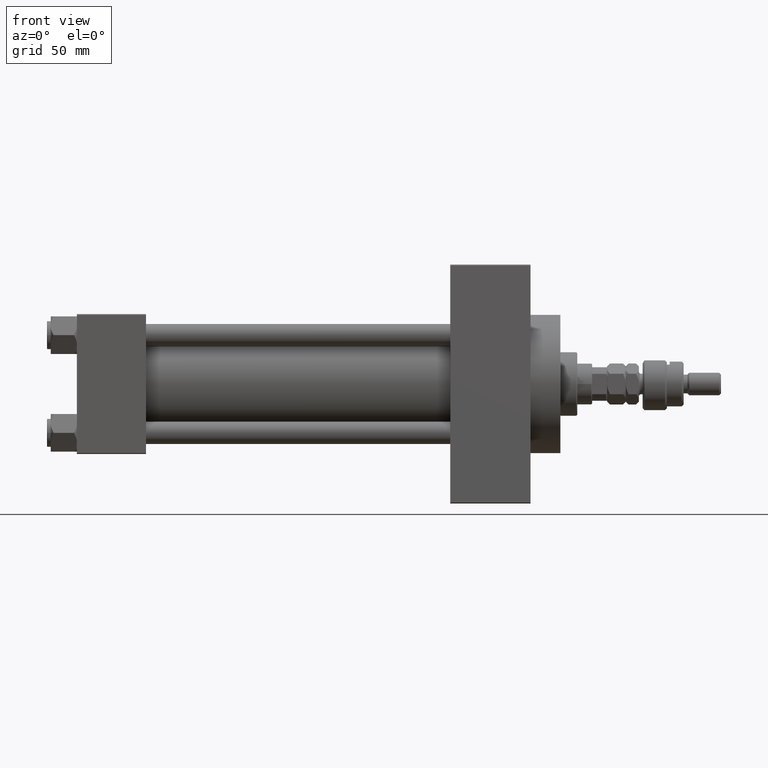
[diagram: clean part render]
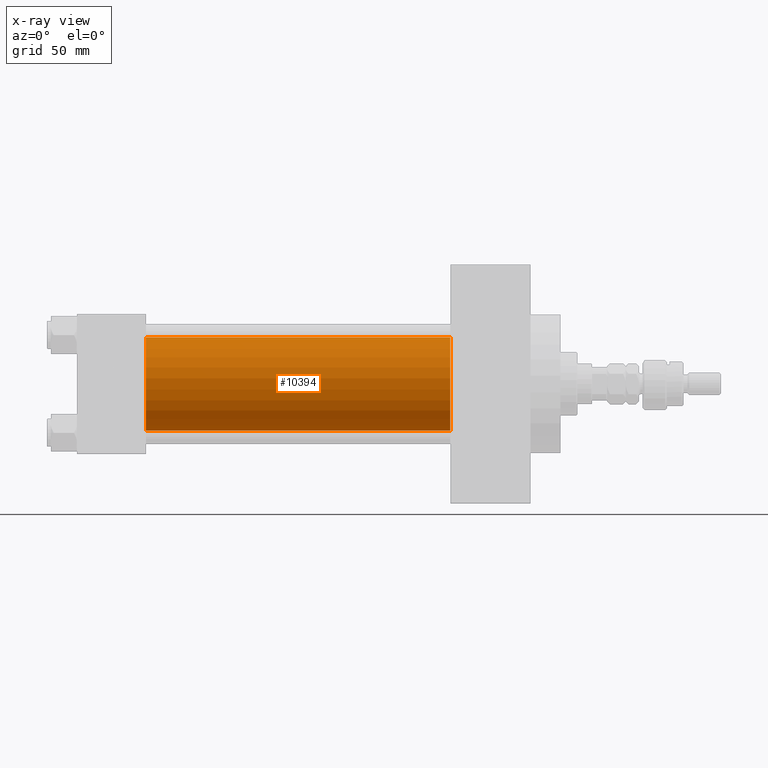
[diagram: x-ray — body ghosted, one internal face saturated and labeled with its STEP entity id]
A machine part, front view, then the same camera in x-ray: the body is ghosted and one INTERNAL B-rep face — a face not visible from any outside direction — is saturated and labeled: STEP entity #10394.
In plain terms, the highlighted cylindrical surface (partial cylindrical patch) has radius 25 mm, axis along (-1, -0, -0).
Its self-contained STEP definition (entity closure, byte-faithful):
#150 = CARTESIAN_POINT ( 'NONE',  ( 200.0000000000000000, -2.602085213965210642E-15, 0.000000000000000000 ) ) ;
#345 = DIRECTION ( 'NONE',  ( 0.000000000000000000, 0.000000000000000000, -1.000000000000000000 ) ) ;
#3628 = AXIS2_PLACEMENT_3D ( 'NONE', #30696, #6848, #7362 ) ;
#4890 = DIRECTION ( 'NONE',  ( 1.000000000000000000, 0.000000000000000000, 0.000000000000000000 ) ) ;
#5616 = CARTESIAN_POINT ( 'NONE',  ( 37.00000000000000000, -2.602085213965210642E-15, 0.000000000000000000 ) ) ;
#6848 = DIRECTION ( 'NONE',  ( -1.000000000000000000, -0.000000000000000000, -0.000000000000000000 ) ) ;
#7242 = CARTESIAN_POINT ( 'NONE',  ( 200.0000000000000000, -2.602085213965210642E-15, 25.00000000000000000 ) ) ;
#7362 = DIRECTION ( 'NONE',  ( 0.000000000000000000, 0.000000000000000000, 1.000000000000000000 ) ) ;
#10394 = ADVANCED_FACE ( 'NONE', ( #19284 ), #27491, .F. ) ;
#10513 = CARTESIAN_POINT ( 'NONE',  ( 200.0000000000000000, -2.602085213965210642E-15, 25.00000000000000000 ) ) ;
#11944 = DIRECTION ( 'NONE',  ( -1.000000000000000000, -0.000000000000000000, -0.000000000000000000 ) ) ;
#15856 = EDGE_CURVE ( 'NONE', #41651, #19351, #29904, .T. ) ;
#18510 = EDGE_LOOP ( 'NONE', ( #18702, #32390, #51368, #18832 ) ) ;
#18702 = ORIENTED_EDGE ( 'NONE', *, *, #44255, .T. ) ;
#18773 = VERTEX_POINT ( 'NONE', #39784 ) ;
#18832 = ORIENTED_EDGE ( 'NONE', *, *, #41477, .F. ) ;
#19284 = FACE_OUTER_BOUND ( 'NONE', #18510, .T. ) ;
#19351 = VERTEX_POINT ( 'NONE', #30412 ) ;
#20004 = DIRECTION ( 'NONE',  ( 0.000000000000000000, 0.000000000000000000, -1.000000000000000000 ) ) ;
#25411 = AXIS2_PLACEMENT_3D ( 'NONE', #150, #4890, #20004 ) ;
#26680 = DIRECTION ( 'NONE',  ( -1.000000000000000000, -0.000000000000000000, -0.000000000000000000 ) ) ;
#27360 = AXIS2_PLACEMENT_3D ( 'NONE', #5616, #33180, #345 ) ;
#27491 = CYLINDRICAL_SURFACE ( 'NONE', #3628, 25.00000000000000000 ) ;
#27947 = CIRCLE ( 'NONE', #25411, 25.00000000000000000 ) ;
#29904 = CIRCLE ( 'NONE', #27360, 25.00000000000000000 ) ;
#30412 = CARTESIAN_POINT ( 'NONE',  ( 37.00000000000000000, 4.595317839031724996E-16, -25.00000000000000000 ) ) ;
#30696 = CARTESIAN_POINT ( 'NONE',  ( 200.0000000000000000, -2.602085213965210642E-15, 0.000000000000000000 ) ) ;
#31550 = CARTESIAN_POINT ( 'NONE',  ( 200.0000000000000000, 4.595317839031724996E-16, -25.00000000000000000 ) ) ;
#32136 = EDGE_CURVE ( 'NONE', #18773, #19351, #48469, .T. ) ;
#32390 = ORIENTED_EDGE ( 'NONE', *, *, #32136, .T. ) ;
#33180 = DIRECTION ( 'NONE',  ( 1.000000000000000000, 0.000000000000000000, 0.000000000000000000 ) ) ;
#39784 = CARTESIAN_POINT ( 'NONE',  ( 200.0000000000000000, 4.595317839031724996E-16, -25.00000000000000000 ) ) ;
#41412 = VECTOR ( 'NONE', #26680, 1000.000000000000000 ) ;
#41477 = EDGE_CURVE ( 'NONE', #45617, #41651, #51256, .T. ) ;
#41651 = VERTEX_POINT ( 'NONE', #47507 ) ;
#41989 = VECTOR ( 'NONE', #11944, 1000.000000000000000 ) ;
#44255 = EDGE_CURVE ( 'NONE', #45617, #18773, #27947, .T. ) ;
#45617 = VERTEX_POINT ( 'NONE', #7242 ) ;
#47507 = CARTESIAN_POINT ( 'NONE',  ( 37.00000000000000000, -2.602085213965210642E-15, 25.00000000000000000 ) ) ;
#48469 = LINE ( 'NONE', #31550, #41989 ) ;
#51256 = LINE ( 'NONE', #10513, #41412 ) ;
#51368 = ORIENTED_EDGE ( 'NONE', *, *, #15856, .F. ) ;